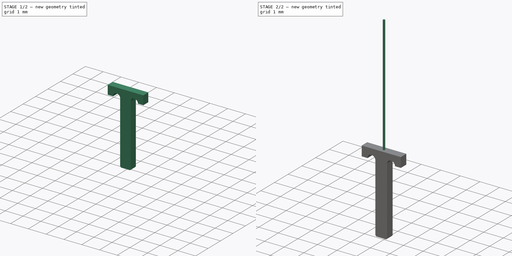
[diagram: build sequence overview — one tinted view per stage of 2, left to right]
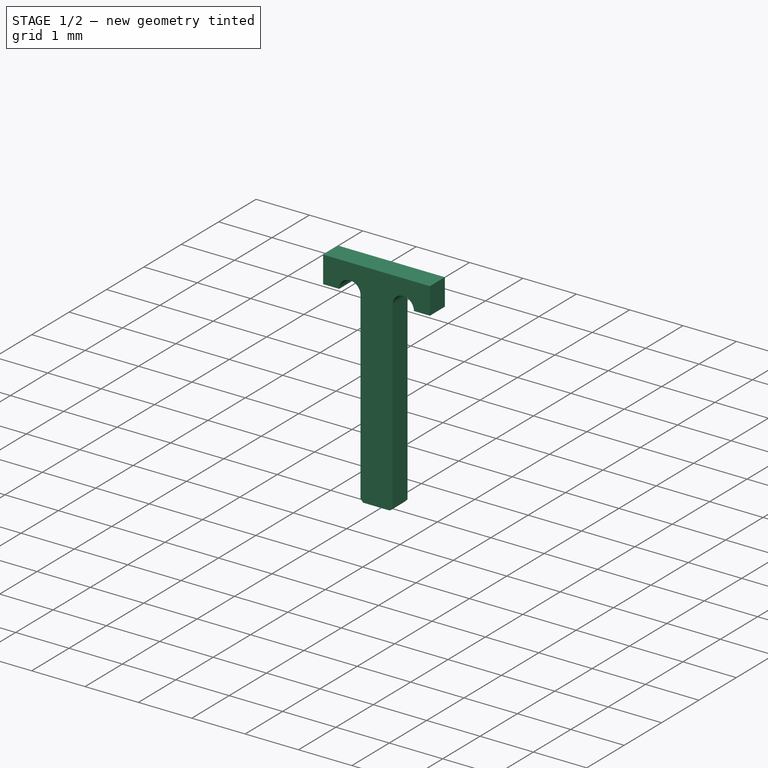
[diagram: stage 1 of 2 — iso view after this stage's code; geometry added in this stage tinted green]
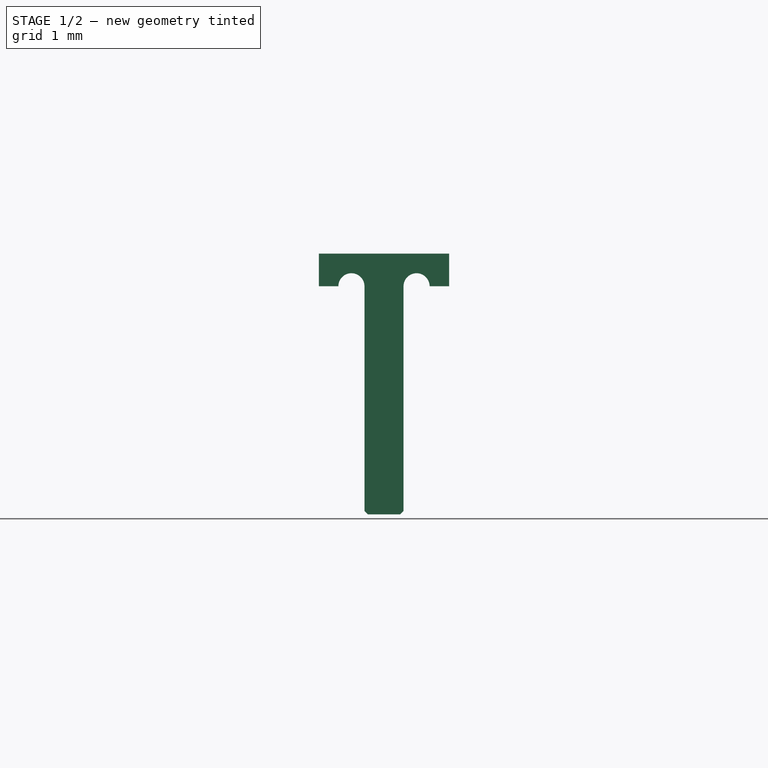
[diagram: stage 1 of 2 — front view after this stage's code; geometry added in this stage tinted green]
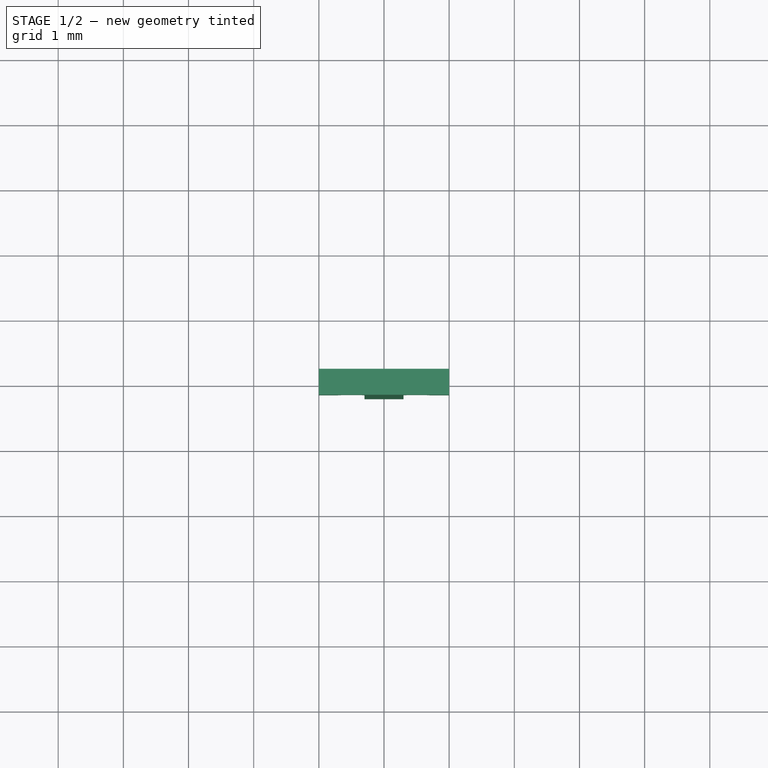
[diagram: stage 1 of 2 — top view after this stage's code; geometry added in this stage tinted green]
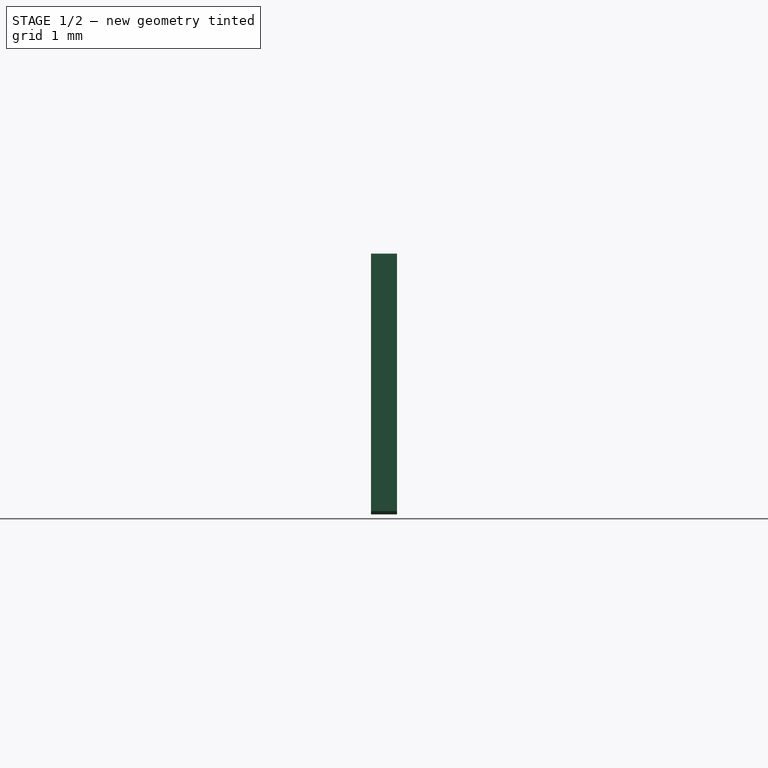
[diagram: stage 1 of 2 — right view after this stage's code; geometry added in this stage tinted green]
FCSTD DOCUMENT  (FreeCAD 0.18R4 (GitTag))
Label: pin
License: All rights reserved
LicenseURL: http://en.wikipedia.org/wiki/All_rights_reserved
objects: Sketcher::SketchObject×1, Part::Cylinder×1, Part::Extrusion×1
note: 3 computed .brp shape members not serialized (recipe doc carries the construction recipe); baked Part::Feature solids carry a one-line shape summary decoded from their .brp

FEATURE [Part::Extrusion] Extrude  label="PinExtrude001"
  Base = -> Sketch
  Dir = (0,-1,0)
  DirMode = 2
  FaceMakerClass = Part::FaceMakerBullseye
  LengthFwd = 0.4
  LengthRev = 0
  Solid = true
  Symmetric = false
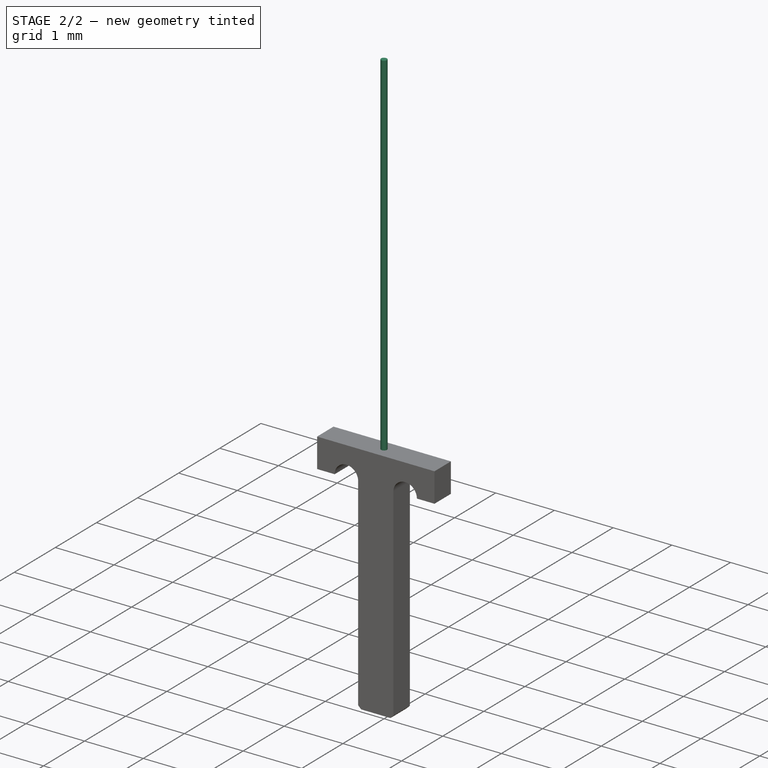
[diagram: stage 2 of 2 — iso view after this stage's code; geometry added in this stage tinted green]
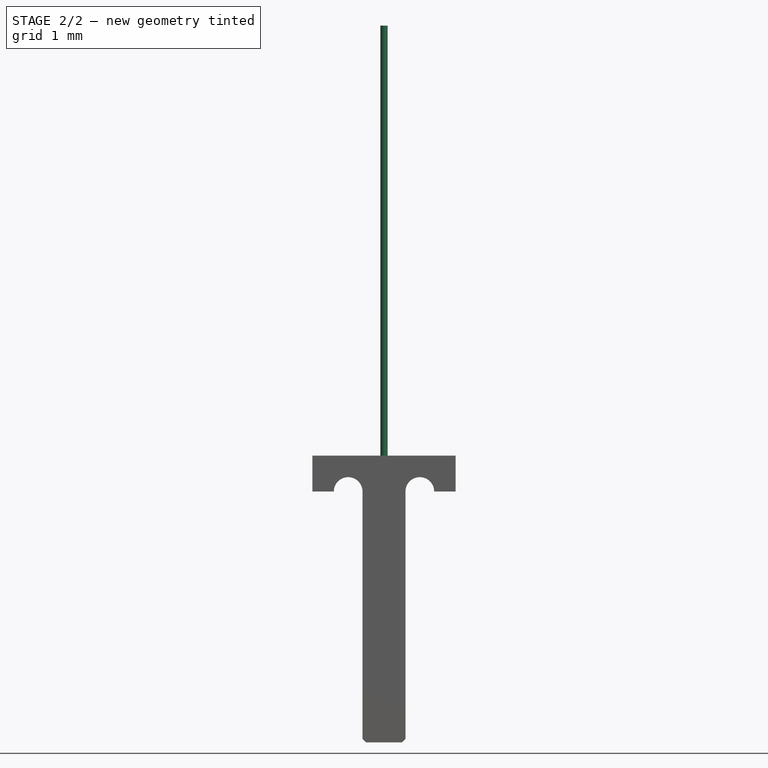
[diagram: stage 2 of 2 — front view after this stage's code; geometry added in this stage tinted green]
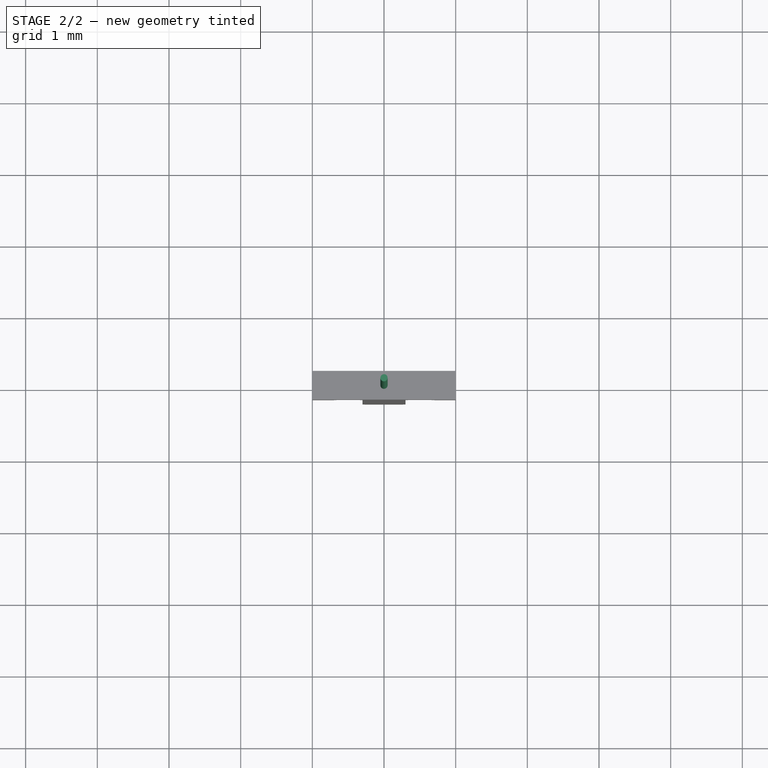
[diagram: stage 2 of 2 — top view after this stage's code; geometry added in this stage tinted green]
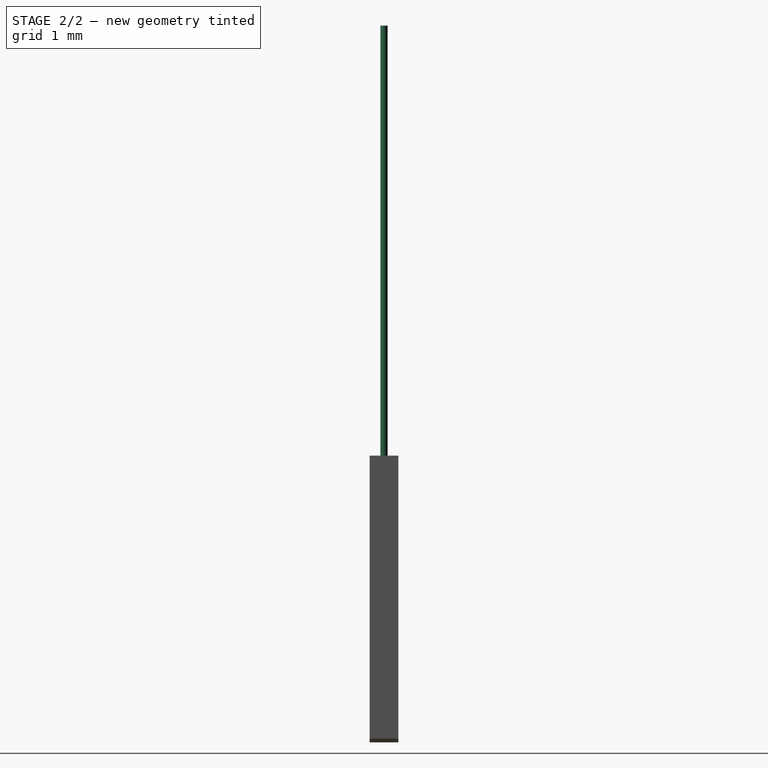
[diagram: stage 2 of 2 — right view after this stage's code; geometry added in this stage tinted green]
FEATURE [Sketcher::SketchObject] Sketch
  Placement = pos=(0,0.2,0) rot=(1,0,0;1.5708rad)
  sketch-geometry (14):
    g0: LineSegment StartX=0 StartY=0 StartZ=0 EndX=0.25 EndY=0 EndZ=0
    g1: LineSegment StartX=0.25 StartY=0 StartZ=0 EndX=0.3 EndY=0.05 EndZ=0
    g2: LineSegment StartX=0.3 StartY=0.05 StartZ=0 EndX=0.3 EndY=3.5 EndZ=0
    g3: ArcOfCircle CenterX=0.5 CenterY=3.5 CenterZ=0 NormalX=0 NormalY=0 NormalZ=1 AngleXU=0 Radius=0.2 StartAngle=-9e-16 EndAngle=3.14159
    g4: LineSegment StartX=0.7 StartY=3.5 StartZ=0 EndX=1 EndY=3.5 EndZ=0
    g5: LineSegment StartX=0 StartY=4 StartZ=0 EndX=1 EndY=4 EndZ=0
    g6: LineSegment StartX=1 StartY=3.5 StartZ=0 EndX=1 EndY=4 EndZ=0
    g7: LineSegment StartX=-1 StartY=4 StartZ=0 EndX=0 EndY=4 EndZ=0
    g8: LineSegment StartX=0 StartY=0 StartZ=0 EndX=-0.25 EndY=0 EndZ=0
    g9: LineSegment StartX=-0.25 StartY=0 StartZ=0 EndX=-0.3 EndY=0.05 EndZ=0
    g10: LineSegment StartX=-0.3 StartY=3.5 StartZ=0 EndX=-0.3 EndY=0.05 EndZ=0
    g11: ArcOfCircle CenterX=-0.5 CenterY=3.5 CenterZ=0 NormalX=0 NormalY=0 NormalZ=1 AngleXU=0 Radius=0.2 StartAngle=6e-16 EndAngle=3.14159
    g12: LineSegment StartX=-0.7 StartY=3.5 StartZ=0 EndX=-1 EndY=3.5 EndZ=0
    g13: LineSegment StartX=-1 StartY=3.5 StartZ=0 EndX=-1 EndY=4 EndZ=0
  constraints (43):
    c: Coincident(g0,g-1)
    c: DistanceX(g0,g0) = 0.25
    c: Horizontal(g0)
    c: Coincident(g1,g0)
    c: DistanceX(g0,g1) = 0.05
    c: DistanceY(g0,g1) = 0.05
    c: Vertical(g2)
    c: Distance(g2) = 3.45
    c: Coincident(g2,g1)
    c: Horizontal(g3,g3)
    c: Radius(g3) = 0.2
    c: Coincident(g3,g2)
    c: Angle(g3) = 3.14159
    c: Horizontal(g4)
    c: Coincident(g4,g3)
    c: DistanceX(g0,g4) = 1
    c: Horizontal(g5)
    c: DistanceX(g5,g5) = 1
    c: DistanceX(g0,g5) = 0
    c: DistanceY(g0,g5) = 4
    c: Coincident(g6,g4)
    c: Coincident(g6,g5)
    c: DistanceX(g7,g7) = 1
    c: Horizontal(g7)
    c: Coincident(g7,g5)
    c: Horizontal(g8)
    c: Coincident(g8,g0)
    c: Equal(g8,g0)
    c: Coincident(g9,g8)
    c: DistanceX(g9,g8) = 0.05
    c: DistanceY(g8,g9) = 0.05
    c: Vertical(g10)
    c: Distance(g10) = 3.45
    c: Coincident(g10,g9)
    c: Horizontal(g11,g11)
    c: Angle(g11) = 3.14159
    c: Radius(g11) = 0.2
    c: Coincident(g11,g10)
    c: Horizontal(g12)
    c: Coincident(g12,g11)
    c: DistanceX(g12,g0) = 1
    c: Coincident(g13,g12)
    c: Coincident(g13,g7)
FEATURE [Part::Cylinder] Cylinder
  Angle = 360
  AttacherType = Attacher::AttachEngine3D
  Height = 10
  Radius = 0.05
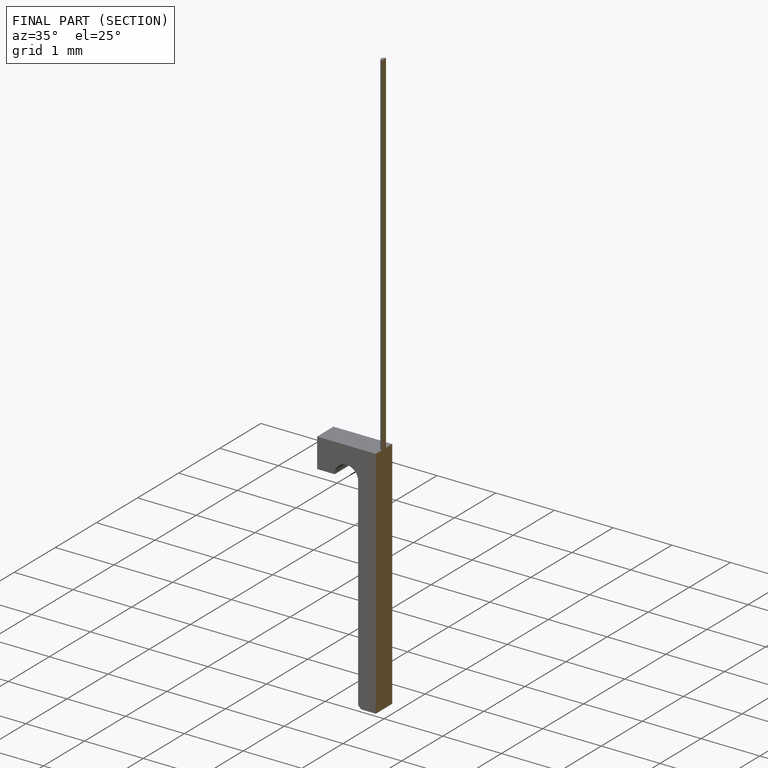
[diagram: finished part — half-section view (interior)]
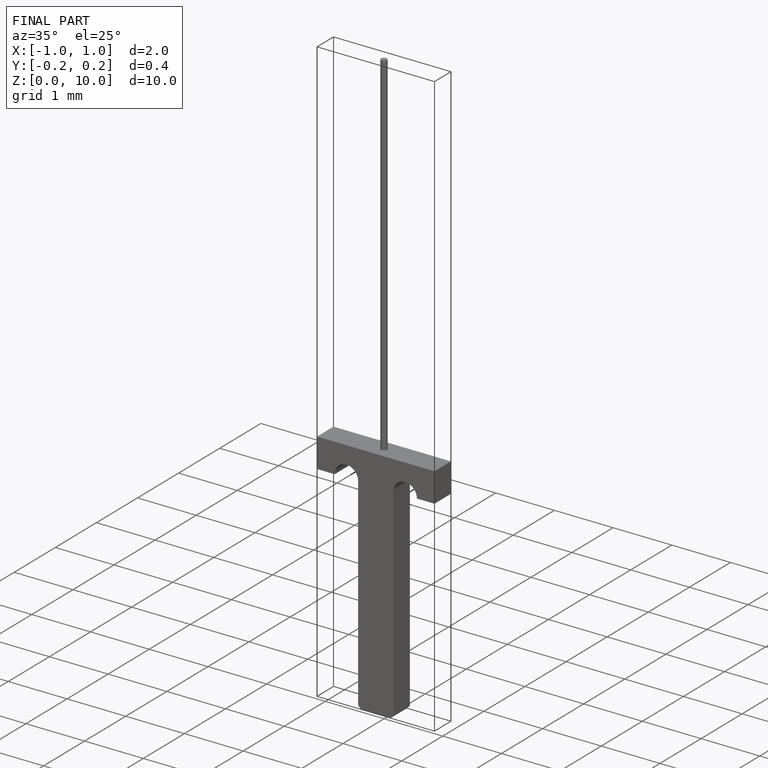
[diagram: finished part — iso view with bounding-box wireframe]
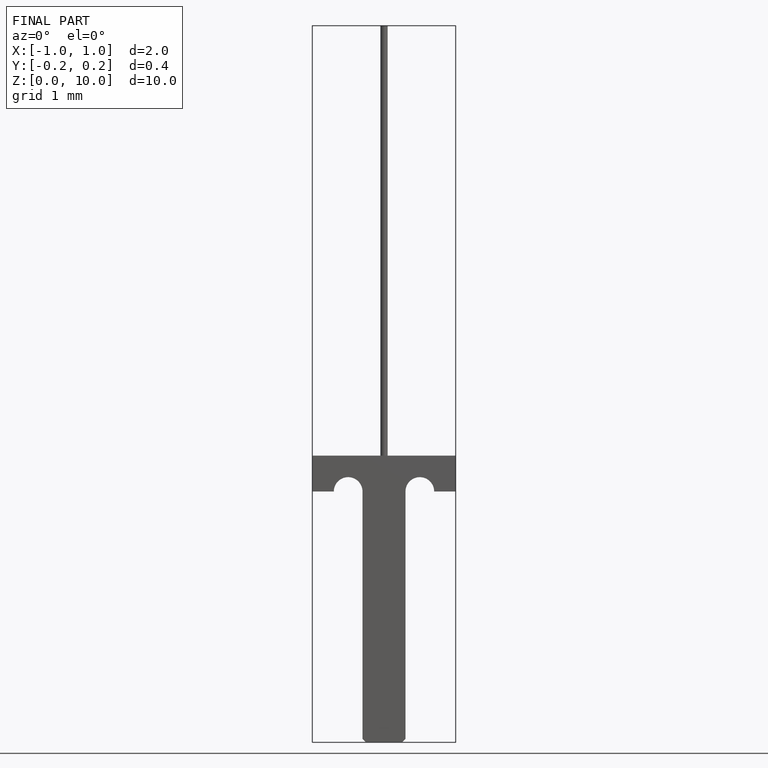
[diagram: finished part — front view with bounding-box wireframe]
